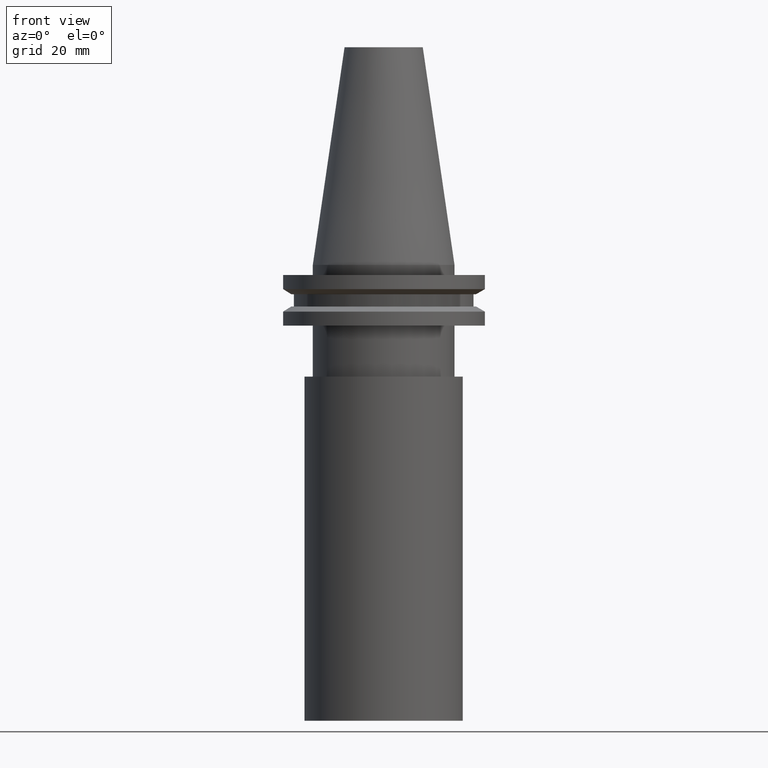
[diagram: clean part render]
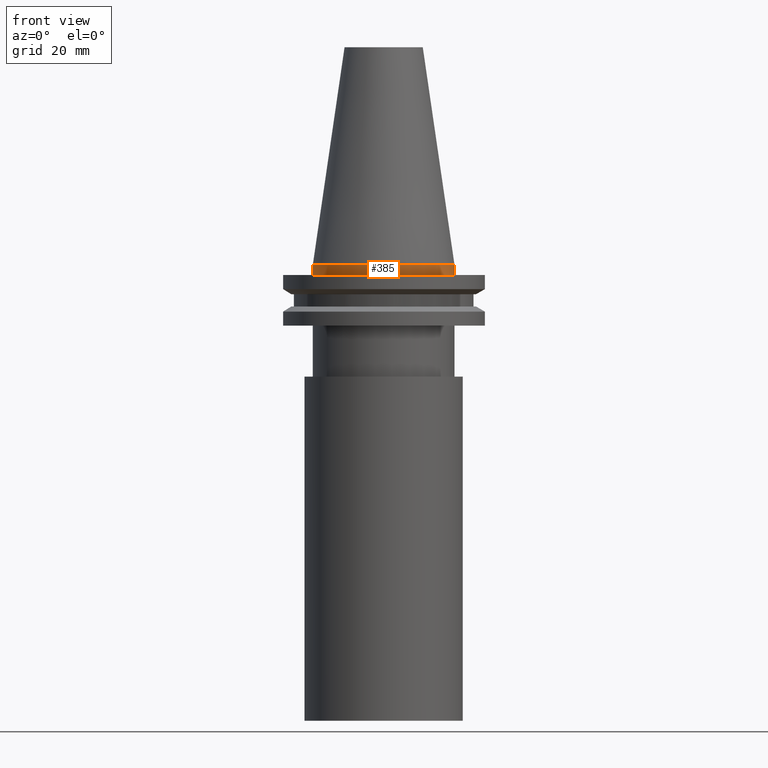
[diagram: same view with one face highlighted and labeled with its STEP entity id]
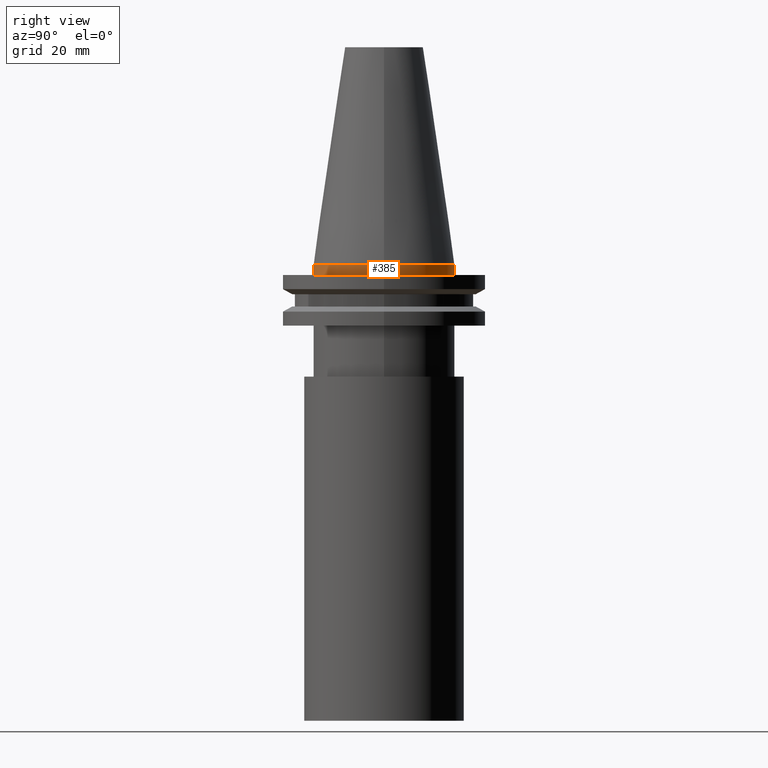
[diagram: same view with one face highlighted and labeled with its STEP entity id]
A machine part, front view. The second image highlights one B-rep face of the part: STEP entity #385.
A second angle (right view) of the same face is appended — the face is thin or edge-on in the first view.
In plain terms, the highlighted cylindrical surface (bore or boss wall) has radius 22.225 mm, axis along (-0, -0, 1).
Its self-contained STEP definition (entity closure, byte-faithful):
#11 = DIRECTION ( 'NONE',  ( 1.000000000000000000, 0.000000000000000000, 0.000000000000000000 ) ) ;
#23 = AXIS2_PLACEMENT_3D ( 'NONE', #42, #164, #11 ) ;
#28 = AXIS2_PLACEMENT_3D ( 'NONE', #88, #384, #240 ) ;
#32 = DIRECTION ( 'NONE',  ( 1.000000000000000000, 0.000000000000000000, 0.000000000000000000 ) ) ;
#34 = DIRECTION ( 'NONE',  ( -0.000000000000000000, -0.000000000000000000, 1.000000000000000000 ) ) ;
#42 = CARTESIAN_POINT ( 'NONE',  ( 0.000000000000000000, 0.000000000000000000, 68.25000000000000000 ) ) ;
#88 = CARTESIAN_POINT ( 'NONE',  ( 0.000000000000000000, 0.000000000000000000, -3.174999999999997158 ) ) ;
#101 = EDGE_CURVE ( 'NONE', #300, #300, #285, .T. ) ;
#104 = EDGE_LOOP ( 'NONE', ( #288 ) ) ;
#143 = EDGE_CURVE ( 'NONE', #355, #355, #199, .T. ) ;
#164 = DIRECTION ( 'NONE',  ( -0.000000000000000000, -0.000000000000000000, 1.000000000000000000 ) ) ;
#165 = EDGE_LOOP ( 'NONE', ( #374 ) ) ;
#199 = CIRCLE ( 'NONE', #28, 22.22500000000000142 ) ;
#208 = CARTESIAN_POINT ( 'NONE',  ( 22.22500000000000142, 0.000000000000000000, -3.174999999999997158 ) ) ;
#236 = FACE_OUTER_BOUND ( 'NONE', #165, .T. ) ;
#240 = DIRECTION ( 'NONE',  ( 1.000000000000000000, 0.000000000000000000, 0.000000000000000000 ) ) ;
#285 = CIRCLE ( 'NONE', #334, 22.22500000000000142 ) ;
#288 = ORIENTED_EDGE ( 'NONE', *, *, #101, .F. ) ;
#300 = VERTEX_POINT ( 'NONE', #386 ) ;
#327 = CARTESIAN_POINT ( 'NONE',  ( 0.000000000000000000, 0.000000000000000000, 0.000000000000000000 ) ) ;
#334 = AXIS2_PLACEMENT_3D ( 'NONE', #327, #34, #32 ) ;
#351 = CYLINDRICAL_SURFACE ( 'NONE', #23, 22.22500000000000142 ) ;
#355 = VERTEX_POINT ( 'NONE', #208 ) ;
#374 = ORIENTED_EDGE ( 'NONE', *, *, #143, .T. ) ;
#381 = FACE_OUTER_BOUND ( 'NONE', #104, .T. ) ;
#384 = DIRECTION ( 'NONE',  ( -0.000000000000000000, -0.000000000000000000, 1.000000000000000000 ) ) ;
#385 = ADVANCED_FACE ( 'NONE', ( #381, #236 ), #351, .T. ) ;
#386 = CARTESIAN_POINT ( 'NONE',  ( 22.22500000000000142, 0.000000000000000000, 0.000000000000000000 ) ) ;